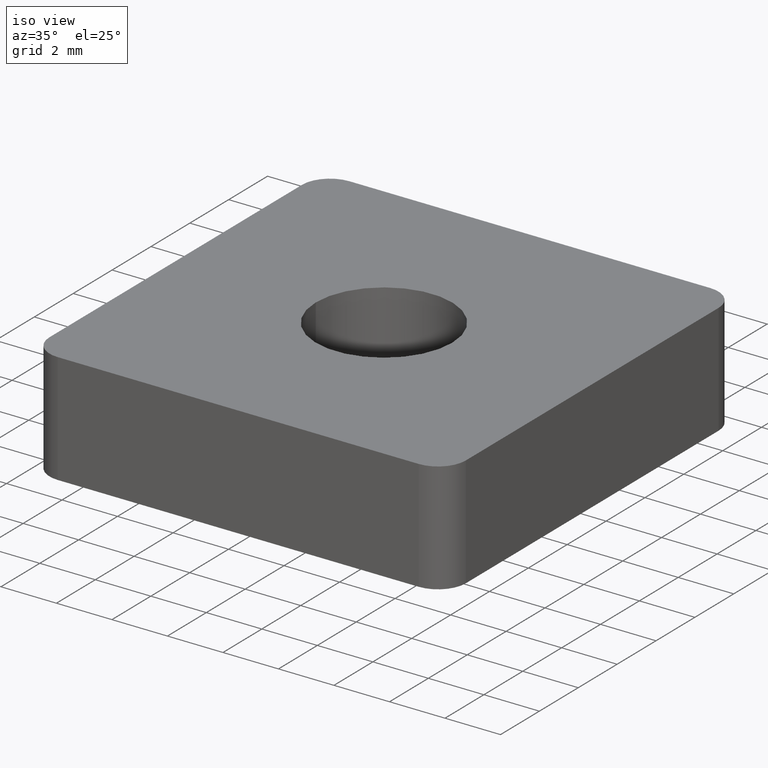
[diagram: clean part render]
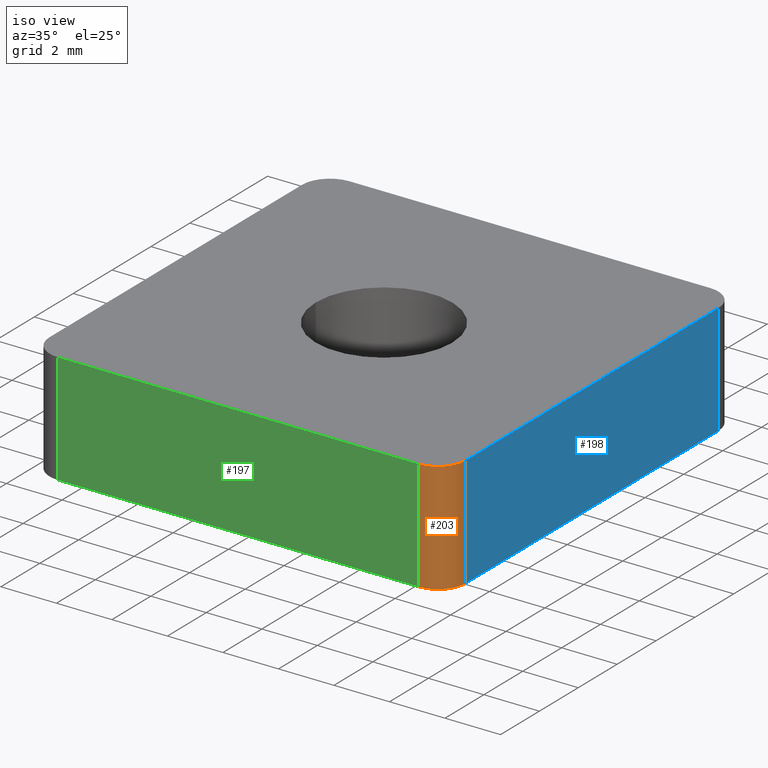
[diagram: same view with three faces highlighted in distinct colors, each labeled with its STEP entity id]
A machine part, iso view with three faces highlighted in distinct colors.
Their STEP definitions:

[orange] entity #203 — the highlighted cylindrical surface (edge-blend (fillet) strip) has radius 1 mm, axis along (0, 0, -1).
#31=FACE_OUTER_BOUND('',#44,.T.);
#44=EDGE_LOOP('',(#178,#179,#180,#181));
#53=LINE('',#332,#70);
#59=LINE('',#344,#76);
#70=VECTOR('',#268,4.);
#76=VECTOR('',#276,4.);
#86=CIRCLE('',#240,1.);
#88=CIRCLE('',#243,1.);
#98=VERTEX_POINT('',#329);
#99=VERTEX_POINT('',#331);
#101=VERTEX_POINT('',#337);
#104=VERTEX_POINT('',#342);
#117=EDGE_CURVE('',#98,#99,#53,.T.);
#123=EDGE_CURVE('',#104,#101,#59,.T.);
#131=EDGE_CURVE('',#99,#104,#86,.T.);
#133=EDGE_CURVE('',#101,#98,#88,.T.);
#178=ORIENTED_EDGE('',*,*,#131,.F.);
#179=ORIENTED_EDGE('',*,*,#117,.F.);
#180=ORIENTED_EDGE('',*,*,#133,.F.);
#181=ORIENTED_EDGE('',*,*,#123,.F.);
#192=CYLINDRICAL_SURFACE('',#247,1.);
#203=ADVANCED_FACE('',(#31),#192,.T.);
#240=AXIS2_PLACEMENT_3D('',#358,#291,#292);
#243=AXIS2_PLACEMENT_3D('',#361,#297,#298);
#247=AXIS2_PLACEMENT_3D('',#365,#305,#306);
#268=DIRECTION('',(0.,0.,1.));
#276=DIRECTION('',(0.,0.,-1.));
#291=DIRECTION('center_axis',(0.,0.,1.));
#292=DIRECTION('ref_axis',(1.,0.,0.));
#297=DIRECTION('center_axis',(0.,0.,-1.));
#298=DIRECTION('ref_axis',(1.,0.,0.));
#305=DIRECTION('center_axis',(0.,0.,-1.));
#306=DIRECTION('ref_axis',(-1.,0.,0.));
#329=CARTESIAN_POINT('',(6.49999999999999,-7.5,-4.));
#331=CARTESIAN_POINT('',(6.49999999999999,-7.5,0.));
#332=CARTESIAN_POINT('',(6.49999999999999,-7.5,-4.));
#337=CARTESIAN_POINT('',(7.49999999999999,-6.49999999999998,-4.));
#342=CARTESIAN_POINT('',(7.49999999999999,-6.49999999999998,0.));
#344=CARTESIAN_POINT('',(7.49999999999999,-6.49999999999998,0.));
#358=CARTESIAN_POINT('Origin',(6.49999999999999,-6.49999999999998,0.));
#361=CARTESIAN_POINT('Origin',(6.49999999999999,-6.49999999999998,-4.));
#365=CARTESIAN_POINT('Origin',(6.49999999999999,-6.49999999999998,1.E-8));

[blue] entity #198 — the highlighted planar face has unit normal (-1, 0, 0).
#19=PLANE('',#234);
#26=FACE_OUTER_BOUND('',#37,.T.);
#37=EDGE_LOOP('',(#148,#149,#150,#151));
#56=LINE('',#339,#73);
#57=LINE('',#341,#74);
#58=LINE('',#343,#75);
#59=LINE('',#344,#76);
#73=VECTOR('',#273,13.);
#74=VECTOR('',#274,4.);
#75=VECTOR('',#275,13.);
#76=VECTOR('',#276,4.);
#101=VERTEX_POINT('',#337);
#102=VERTEX_POINT('',#338);
#103=VERTEX_POINT('',#340);
#104=VERTEX_POINT('',#342);
#120=EDGE_CURVE('',#101,#102,#56,.T.);
#121=EDGE_CURVE('',#102,#103,#57,.T.);
#122=EDGE_CURVE('',#104,#103,#58,.T.);
#123=EDGE_CURVE('',#104,#101,#59,.T.);
#148=ORIENTED_EDGE('',*,*,#120,.T.);
#149=ORIENTED_EDGE('',*,*,#121,.T.);
#150=ORIENTED_EDGE('',*,*,#122,.F.);
#151=ORIENTED_EDGE('',*,*,#123,.T.);
#198=ADVANCED_FACE('',(#26),#19,.F.);
#234=AXIS2_PLACEMENT_3D('',#336,#271,#272);
#271=DIRECTION('center_axis',(-1.,0.,0.));
#272=DIRECTION('ref_axis',(0.,0.,1.));
#273=DIRECTION('',(0.,1.,0.));
#274=DIRECTION('',(0.,0.,1.));
#275=DIRECTION('',(0.,1.,0.));
#276=DIRECTION('',(0.,0.,-1.));
#336=CARTESIAN_POINT('Origin',(7.49999999999999,-7.14999999999998,-4.2));
#337=CARTESIAN_POINT('',(7.49999999999999,-6.49999999999998,-4.));
#338=CARTESIAN_POINT('',(7.49999999999999,6.50000000000001,-4.));
#339=CARTESIAN_POINT('',(7.49999999999999,-6.49999999999998,-4.));
#340=CARTESIAN_POINT('',(7.49999999999999,6.50000000000001,0.));
#341=CARTESIAN_POINT('',(7.49999999999999,6.50000000000001,-4.));
#342=CARTESIAN_POINT('',(7.49999999999999,-6.49999999999998,0.));
#343=CARTESIAN_POINT('',(7.49999999999999,-6.49999999999998,0.));
#344=CARTESIAN_POINT('',(7.49999999999999,-6.49999999999998,0.));

[green] entity #197 — the highlighted planar face has unit normal (0, 1, 0).
#18=PLANE('',#233);
#25=FACE_OUTER_BOUND('',#36,.T.);
#36=EDGE_LOOP('',(#144,#145,#146,#147));
#52=LINE('',#330,#69);
#53=LINE('',#332,#70);
#54=LINE('',#334,#71);
#55=LINE('',#335,#72);
#69=VECTOR('',#267,13.);
#70=VECTOR('',#268,4.);
#71=VECTOR('',#269,13.);
#72=VECTOR('',#270,4.);
#97=VERTEX_POINT('',#328);
#98=VERTEX_POINT('',#329);
#99=VERTEX_POINT('',#331);
#100=VERTEX_POINT('',#333);
#116=EDGE_CURVE('',#97,#98,#52,.T.);
#117=EDGE_CURVE('',#98,#99,#53,.T.);
#118=EDGE_CURVE('',#100,#99,#54,.T.);
#119=EDGE_CURVE('',#100,#97,#55,.T.);
#144=ORIENTED_EDGE('',*,*,#116,.T.);
#145=ORIENTED_EDGE('',*,*,#117,.T.);
#146=ORIENTED_EDGE('',*,*,#118,.F.);
#147=ORIENTED_EDGE('',*,*,#119,.T.);
#197=ADVANCED_FACE('',(#25),#18,.F.);
#233=AXIS2_PLACEMENT_3D('',#327,#265,#266);
#265=DIRECTION('center_axis',(0.,1.,0.));
#266=DIRECTION('ref_axis',(0.,0.,1.));
#267=DIRECTION('',(1.,0.,0.));
#268=DIRECTION('',(0.,0.,1.));
#269=DIRECTION('',(1.,0.,0.));
#270=DIRECTION('',(0.,0.,-1.));
#327=CARTESIAN_POINT('Origin',(-7.15,-7.5,-4.2));
#328=CARTESIAN_POINT('',(-6.5,-7.5,-4.));
#329=CARTESIAN_POINT('',(6.49999999999999,-7.5,-4.));
#330=CARTESIAN_POINT('',(-6.5,-7.5,-4.));
#331=CARTESIAN_POINT('',(6.49999999999999,-7.5,0.));
#332=CARTESIAN_POINT('',(6.49999999999999,-7.5,-4.));
#333=CARTESIAN_POINT('',(-6.5,-7.5,0.));
#334=CARTESIAN_POINT('',(-6.5,-7.5,0.));
#335=CARTESIAN_POINT('',(-6.5,-7.5,0.));